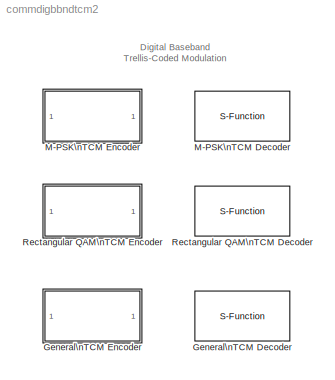
MODEL commdigbbndtcm2
KIND library
BLOCK [S-Function] General\nTCM Decoder
  FunctionName = scomtcmdec
  MaskCallbackString = |||commblkgentcmdec(gcb,'cbOpmode');|
  MaskDescription = Use the Viterbi algorithm to decode trellis-coded modulation data, mapped using the Signal constellation parameter that expects complex constellation points in the set-partitioned order.\n\nThe Trellis structure parameter must be a valid MATLAB trellis structure. To check if a structure is a valid trellis structure, use the istrellis function in MATLAB.
  MaskDisplay = disp('General\\nTCM');\nport_label('input',s.ports.i1,s.ports.i1s);\nport_label('input',s.ports.i2,s.ports.i2s);\nport_label('output',s.ports.o1,s.ports.o1s);
  MaskEnableString = on,on,on,on,on
  MaskHelp = helpview(commbhelp)
  MaskIconFrame = on
  MaskIconOpaque = on
  MaskIconRotate = none
  MaskIconUnits = autoscale
  MaskInitialization = [e, s, cplxconstpts, t] = commblkgentcmdec(gcb,'init');\nif ~isempty(e.msg)\n	error(e.msg); \nend\n
  MaskPromptString = Trellis structure:|Signal constellation:|Traceback depth:|Operation mode:|Enable the reset input port
  MaskSelfModifiable = on
  MaskStyleString = edit,edit,edit,popup(Continuous|Truncated|Terminated),checkbox
  MaskTabNameString = ,,,,
  MaskToolTipString = on,on,on,on,on
  MaskTunableValueString = on,on,on,on,off
  MaskType = General TCM Decoder
  MaskValueString = poly2trellis([1 3],[1 0 0; 0 5 2])|exp(2*pi*j*[0 4 2 6 1 5 3 7]/8)|21|Continuous|off
  MaskVarAliasString = ,,,,
  MaskVariables = trellis=@1;constpts=@2;tbdepth=@3;opmode=@4;reset=@5;
  MaskVisibilityString = on,on,on,on,on
  Parameters = t.k,t.n,t.numStates,t.outputs,t.nextStates, real(cplxconstpts), imag(cplxconstpts), tbdepth, opmode, reset
  Ports = [1, 1]
  SFunctionModules = viterbi_acs_tbdec
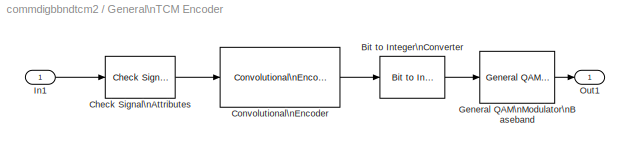
BLOCK [SubSystem] General\nTCM Encoder
  MaskCallbackString = |
  MaskDescription = Convolutionally encode binary data and perform signal mapping using the Signal constellation parameter, which expects complex constellation points in the set-partitioned order.\n\nThe Trellis structure parameter must be a valid MATLAB trellis structure. To check if a structure is a valid trellis structure, use the istrellis function in MATLAB.
  MaskDisplay = disp('General\\nTCM')
  MaskEnableString = on,on
  MaskHelp = helpview(commbhelp)
  MaskIconFrame = on
  MaskIconOpaque = on
  MaskIconRotate = none
  MaskIconUnits = autoscale
  MaskInitialization = [constpts Mnum err] = commblkgentcmenc(gcb);\nif ~isempty(err.msg)\n	error(err.msg);\nend
  MaskPromptString = Trellis structure:|Signal constellation:
  MaskStyleString = edit,edit
  MaskTabNameString = ,
  MaskToolTipString = on,on
  MaskTunableValueString = on,on
  MaskType = General TCM Encoder
  MaskValueString = poly2trellis([1 3],[1 0 0; 0 5 2])|exp(2*pi*j*[0 4 2 6 1 5 3 7]/8)
  MaskVarAliasString = ,
  MaskVariables = trellis=@1;constpts=@2;
  MaskVisibilityString = on,on
  MinAlgLoopOccurrences = off
  Ports = [1, 1]
  PropExecContextAcrossSSBoundary = on
  RTWSystemCode = Auto
  TreatAsAtomicUnit = off
BLOCK [Reference] General\nTCM Encoder/Bit to Integer\nConverter  REF=commutil2/Bit to Integer\nConverter
  Ports = [1, 1]
  SourceBlock = commutil2/Bit to Integer\nConverter
  SourceType = Bit to Integer Converter
  nbits = log2(Mnum)
BLOCK [Reference] General\nTCM Encoder/Check Signal\nAttributes  REF=dspsigattribs/Check Signal\nAttributes
  Complexity = Ignore
  DatatypeCheckMethod = Ignore
  DatatypeGeneral = Boolean
  Dimensions = 1-D
  DimsCheckMethod = Ignore
  DtypeFixedSpecific = Any fixed-point
  DtypeFloatSpecific = Any floating-point
  DtypeIntSpecific = Any integer
  Frame = Sample-based
  Ports = [1, 1]
  SampleMode = Ignore
  SigAttribCheckMethod = Matches attributes exactly
  SourceBlock = dspsigattribs/Check Signal\nAttributes
  SourceType = Check Signal Attributes
BLOCK [Reference] General\nTCM Encoder/Convolutional\nEncoder  REF=commcnvcod2/Convolutional\nEncoder
  Ports = [1, 1]
  SourceBlock = commcnvcod2/Convolutional\nEncoder
  SourceType = Convolutional Encoder
  reset = None
  trellis = trellis
BLOCK [Reference] General\nTCM Encoder/General QAM\nModulator\nBaseband  REF=commdigbbndam2/General QAM\nModulator\nBaseband
  Ports = [1, 1]
  SigCon = constpts
  SourceBlock = commdigbbndam2/General QAM\nModulator\nBaseband
  SourceType = General QAM Modulator Baseband
  numSamp = 1
BLOCK [Inport] General\nTCM Encoder/In1
  IconDisplay = Port number
  LatchInput = off
BLOCK [Outport] General\nTCM Encoder/Out1
  BusOutputAsStruct = off
  IconDisplay = Port number
BLOCK [S-Function] M-PSK\nTCM Decoder
  FunctionName = scomtcmdec
  MaskCallbackString = |||commblkpsktcmdec(gcb,'cbOpmode');|
  MaskDescription = Uses the Viterbi algorithm to decode TCM data for PSK modulated signal.
  MaskDisplay = disp('M-PSK\\nTCM');\nport_label('input',s.ports.i1,s.ports.i1s);\nport_label('input',s.ports.i2,s.ports.i2s);\nport_label('output',s.ports.o1,s.ports.o1s);
  MaskEnableString = on,on,on,on,on
  MaskHelp = helpview(commbhelp)
  MaskIconFrame = on
  MaskIconOpaque = on
  MaskIconRotate = none
  MaskIconUnits = autoscale
  MaskInitialization = [e, s, cplxconstpts, t] = commblkpsktcmdec(gcb,'init');\nif ~isempty(e.msg)\n	error(e.msg); \nend
  MaskPromptString = Trellis structure:|M-ary number:|Traceback depth:|Operation mode:|Enable the reset input port
  MaskSelfModifiable = on
  MaskStyleString = edit,popup(4|8|16),edit,popup(Continuous|Truncated|Terminated),checkbox
  MaskTabNameString = ,,,,
  MaskToolTipString = on,on,on,on,on
  MaskTunableValueString = on,on,on,on,off
  MaskType = M-PSK TCM Decoder
  MaskValueString = poly2trellis([1 3],[1 0 0; 0 5 2])|8|21|Continuous|off
  MaskVarAliasString = ,,,,
  MaskVariables = trellis=@1;M=@2;tbdepth=@3;opmode=@4;reset=@5;
  MaskVisibilityString = on,on,on,on,on
  Parameters = t.k,t.n,t.numStates,t.outputs,t.nextStates, real(cplxconstpts), imag(cplxconstpts), tbdepth, opmode, reset
  Ports = [1, 1]
  SFunctionModules = viterbi_acs_tbdec
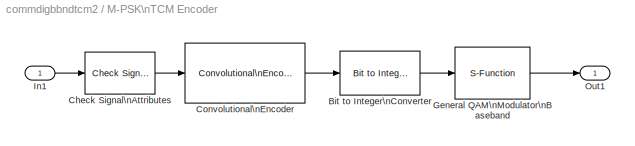
BLOCK [SubSystem] M-PSK\nTCM Encoder
  MaskCallbackString = |
  MaskDescription = Convolutionally encode binary data and modulate using the phase shift keying method.\n\nThe Trellis structure parameter must be a valid MATLAB trellis structure. To check if a structure is a valid trellis structure, use the istrellis function in MATLAB.
  MaskDisplay = disp('M-PSK\\nTCM')
  MaskEnableString = on,on
  MaskHelp = helpview(commbhelp)
  MaskIconFrame = on
  MaskIconOpaque = on
  MaskIconRotate = none
  MaskIconUnits = autoscale
  MaskInitialization = [constpts Mnum err] = commblkpsktcmenc(gcb);\nif ~isempty(err.msg)\n	error(err.msg);\nend\n
  MaskPromptString = Trellis structure:|M-ary number:
  MaskStyleString = edit,popup(4|8|16)
  MaskTabNameString = ,
  MaskToolTipString = on,on
  MaskTunableValueString = on,on
  MaskType = M-PSK TCM Encoder
  MaskValueString = poly2trellis([1 3],[1 0 0; 0 5 2])|8
  MaskVarAliasString = ,
  MaskVariables = trellis=@1;M=@2;
  MaskVisibilityString = on,on
  MinAlgLoopOccurrences = off
  Ports = [1, 1]
  PropExecContextAcrossSSBoundary = on
  RTWSystemCode = Auto
  TreatAsAtomicUnit = off
BLOCK [Reference] M-PSK\nTCM Encoder/Bit to Integer\nConverter  REF=commutil2/Bit to Integer\nConverter
  Ports = [1, 1]
  SourceBlock = commutil2/Bit to Integer\nConverter
  SourceType = Bit to Integer Converter
  nbits = log2(Mnum)
BLOCK [Reference] M-PSK\nTCM Encoder/Check Signal\nAttributes  REF=dspsigattribs/Check Signal\nAttributes
  Complexity = Ignore
  DatatypeCheckMethod = Ignore
  DatatypeGeneral = Boolean
  Dimensions = 1-D
  DimsCheckMethod = Ignore
  DtypeFixedSpecific = Any fixed-point
  DtypeFloatSpecific = Any floating-point
  DtypeIntSpecific = Any integer
  Frame = Sample-based
  Ports = [1, 1]
  SampleMode = Ignore
  SigAttribCheckMethod = Matches attributes exactly
  SourceBlock = dspsigattribs/Check Signal\nAttributes
  SourceType = Check Signal Attributes
BLOCK [Reference] M-PSK\nTCM Encoder/Convolutional\nEncoder  REF=commcnvcod2/Convolutional\nEncoder
  Ports = [1, 1]
  SourceBlock = commcnvcod2/Convolutional\nEncoder
  SourceType = Convolutional Encoder
  reset = None
  trellis = trellis
BLOCK [S-Function] M-PSK\nTCM Encoder/General QAM\nModulator\nBaseband
  AncestorBlock = commdigbbndam2/General QAM\nModulator\nBaseband
  FunctionName = scomapskmod
  MaskCallbackString = |
  MaskDescription = Modulate the input signal using the quadrature amplitude modulation method.\n\nThe block only accepts integers as input. For sample-based integer input, the input must be a scalar. For frame-based integer input, the input must be a column vector.\n\nIn case of frame-based input, the width of the output frame equals the product of the number of symbols and the Samples per symbol value.\n\nIn case o...<+110ch>
  MaskDisplay = plot(0,0,100,100,[5+15*[0 1 1 2 2 3] 50 50 50 50+1.5*[[0:.8:10] [10:1.6:20] [20:.8:30]]],[85+8*[1 1 -1 -1 1 1] 85 99 75 85+10*[sin([0:.8:10]*pi*2/5) sin([10:1.6:20]*pi/5) sin([20:.8:30]*pi*2/5)]]);\ndisp('\\nGeneral\\nQAM')
  MaskEnableString = on,on
  MaskHelp = helpview(commbhelp)
  MaskIconFrame = on
  MaskIconOpaque = on
  MaskIconRotate = none
  MaskIconUnits = autoscale
  MaskInitialization = SigConRe=real(SigCon);\nSigConIm=imag(SigCon);
  MaskPromptString = Signal constellation:|Samples per symbol:
  MaskStyleString = edit,edit
  MaskTabNameString = ,
  MaskToolTipString = on,on
  MaskTunableValueString = on,on
  MaskType = General QAM Modulator Baseband
  MaskValueString = constpts|1
  MaskVarAliasString = ,
  MaskVariables = SigCon=@1;numSamp=@2;
  MaskVisibilityString = on,on
  Parameters = 4,2,1,1,1,1,1,0,numSamp,SigConRe,SigConIm,5
  Ports = [1, 1]
BLOCK [Inport] M-PSK\nTCM Encoder/In1
  IconDisplay = Port number
  LatchInput = off
BLOCK [Outport] M-PSK\nTCM Encoder/Out1
  BusOutputAsStruct = off
  IconDisplay = Port number
BLOCK [S-Function] Rectangular QAM\nTCM Decoder
  FunctionName = scomtcmdec
  MaskCallbackString = |||commblkqamtcmdec(gcb,'cbOpmode');|
  MaskDescription = Use the Viterbi algorithm to decode trellis-coded modulation data, modulated using the quadrature amplitude modulation method. \n\nThe Trellis structure parameter must be a valid MATLAB trellis structure. To check if a structure is a valid trellis structure, use the istrellis function in MATLAB.
  MaskDisplay = disp('Rectangular\\nQAM TCM');\nport_label('input',s.ports.i1,s.ports.i1s);\nport_label('input',s.ports.i2,s.ports.i2s);\nport_label('output',s.ports.o1,s.ports.o1s);
  MaskEnableString = on,on,on,on,on
  MaskHelp = helpview(commbhelp)
  MaskIconFrame = on
  MaskIconOpaque = on
  MaskIconRotate = none
  MaskIconUnits = autoscale
  MaskInitialization = [e, s, cplxconstpts, t] = commblkqamtcmdec(gcb,'init');\nif ~isempty(e.msg)\n	error(e.msg); \nend
  MaskPromptString = Trellis structure:|M-ary number:|Traceback depth:|Operation mode:|Enable the reset input port
  MaskSelfModifiable = on
  MaskStyleString = edit,popup(4|8|16|32|64),edit,popup(Continuous|Truncated|Terminated),checkbox
  MaskTabNameString = ,,,,
  MaskToolTipString = on,on,on,on,on
  MaskTunableValueString = on,on,on,on,off
  MaskType = Rectangular QAM TCM Decoder
  MaskValueString = poly2trellis([3 1 1], [ 5 2 0 0; 0 0 1 0; 0 0 0 1])|16|21|Continuous|off
  MaskVarAliasString = ,,,,
  MaskVariables = trellis=@1;M=@2;tbdepth=@3;opmode=@4;reset=@5;
  MaskVisibilityString = on,on,on,on,on
  Parameters = t.k,t.n,t.numStates,t.outputs,t.nextStates, real(cplxconstpts), imag(cplxconstpts), tbdepth, opmode, reset
  Ports = [1, 1]
  SFunctionModules = viterbi_acs_tbdec
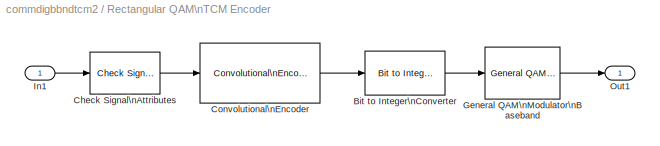
BLOCK [SubSystem] Rectangular QAM\nTCM Encoder
  MaskCallbackString = |
  MaskDescription = Convolutionally encode binary data and modulate using the quadrature amplitude modulation method.\n\nThe Trellis structure parameter must be a valid MATLAB trellis structure. To check if a structure is a valid trellis structure, use the istrellis function in MATLAB.
  MaskDisplay = disp('Rectangular\\nQAM TCM')
  MaskEnableString = on,on
  MaskHelp = helpview(commbhelp)
  MaskIconFrame = on
  MaskIconOpaque = on
  MaskIconRotate = none
  MaskIconUnits = autoscale
  MaskInitialization = [constpts Mnum err] = commblkqamtcmenc(gcb);\nif ~isempty(err.msg)\n	error(err.msg);\nend
  MaskPromptString = Trellis structure:|M-ary number:
  MaskStyleString = edit,popup(4|8|16|32|64)
  MaskTabNameString = ,
  MaskToolTipString = on,on
  MaskTunableValueString = on,on
  MaskType = Rectangular QAM TCM Encoder
  MaskValueString = poly2trellis([3 1 1], [ 5 2 0 0; 0 0 1 0; 0 0 0 1])|16
  MaskVarAliasString = ,
  MaskVariables = trellis=@1;M=@2;
  MaskVisibilityString = on,on
  MinAlgLoopOccurrences = off
  Ports = [1, 1]
  PropExecContextAcrossSSBoundary = on
  RTWSystemCode = Auto
  TreatAsAtomicUnit = off
BLOCK [Reference] Rectangular QAM\nTCM Encoder/Bit to Integer\nConverter  REF=commutil2/Bit to Integer\nConverter
  Ports = [1, 1]
  SourceBlock = commutil2/Bit to Integer\nConverter
  SourceType = Bit to Integer Converter
  nbits = log2(Mnum)
BLOCK [Reference] Rectangular QAM\nTCM Encoder/Check Signal\nAttributes  REF=dspsigattribs/Check Signal\nAttributes
  Complexity = Ignore
  DatatypeCheckMethod = Ignore
  DatatypeGeneral = Boolean
  Dimensions = 1-D
  DimsCheckMethod = Ignore
  DtypeFixedSpecific = Any fixed-point
  DtypeFloatSpecific = Any floating-point
  DtypeIntSpecific = Any integer
  Frame = Sample-based
  Ports = [1, 1]
  SampleMode = Ignore
  SigAttribCheckMethod = Matches attributes exactly
  SourceBlock = dspsigattribs/Check Signal\nAttributes
  SourceType = Check Signal Attributes
BLOCK [Reference] Rectangular QAM\nTCM Encoder/Convolutional\nEncoder  REF=commcnvcod2/Convolutional\nEncoder
  Ports = [1, 1]
  SourceBlock = commcnvcod2/Convolutional\nEncoder
  SourceType = Convolutional Encoder
  reset = None
  trellis = trellis
BLOCK [Reference] Rectangular QAM\nTCM Encoder/General QAM\nModulator\nBaseband  REF=commdigbbndam2/General QAM\nModulator\nBaseband
  Ports = [1, 1]
  SigCon = constpts
  SourceBlock = commdigbbndam2/General QAM\nModulator\nBaseband
  SourceType = General QAM Modulator Baseband
  numSamp = 1
BLOCK [Inport] Rectangular QAM\nTCM Encoder/In1
  IconDisplay = Port number
  LatchInput = off
BLOCK [Outport] Rectangular QAM\nTCM Encoder/Out1
  BusOutputAsStruct = off
  IconDisplay = Port number
ANNOTATION (root): Digital Baseband\nTrellis-Coded Modulation
LINE General\nTCM Encoder/Bit to Integer\nConverter:1 -> General\nTCM Encoder/General QAM\nModulator\nBaseband:1
LINE General\nTCM Encoder/Check Signal\nAttributes:1 -> General\nTCM Encoder/Convolutional\nEncoder:1
LINE General\nTCM Encoder/Convolutional\nEncoder:1 -> General\nTCM Encoder/Bit to Integer\nConverter:1
LINE General\nTCM Encoder/General QAM\nModulator\nBaseband:1 -> General\nTCM Encoder/Out1:1
LINE General\nTCM Encoder/In1:1 -> General\nTCM Encoder/Check Signal\nAttributes:1
LINE M-PSK\nTCM Encoder/Bit to Integer\nConverter:1 -> M-PSK\nTCM Encoder/General QAM\nModulator\nBaseband:1
LINE M-PSK\nTCM Encoder/Check Signal\nAttributes:1 -> M-PSK\nTCM Encoder/Convolutional\nEncoder:1
LINE M-PSK\nTCM Encoder/Convolutional\nEncoder:1 -> M-PSK\nTCM Encoder/Bit to Integer\nConverter:1
LINE M-PSK\nTCM Encoder/General QAM\nModulator\nBaseband:1 -> M-PSK\nTCM Encoder/Out1:1
LINE M-PSK\nTCM Encoder/In1:1 -> M-PSK\nTCM Encoder/Check Signal\nAttributes:1
LINE Rectangular QAM\nTCM Encoder/Bit to Integer\nConverter:1 -> Rectangular QAM\nTCM Encoder/General QAM\nModulator\nBaseband:1
LINE Rectangular QAM\nTCM Encoder/Check Signal\nAttributes:1 -> Rectangular QAM\nTCM Encoder/Convolutional\nEncoder:1
LINE Rectangular QAM\nTCM Encoder/Convolutional\nEncoder:1 -> Rectangular QAM\nTCM Encoder/Bit to Integer\nConverter:1
LINE Rectangular QAM\nTCM Encoder/General QAM\nModulator\nBaseband:1 -> Rectangular QAM\nTCM Encoder/Out1:1
LINE Rectangular QAM\nTCM Encoder/In1:1 -> Rectangular QAM\nTCM Encoder/Check Signal\nAttributes:1
